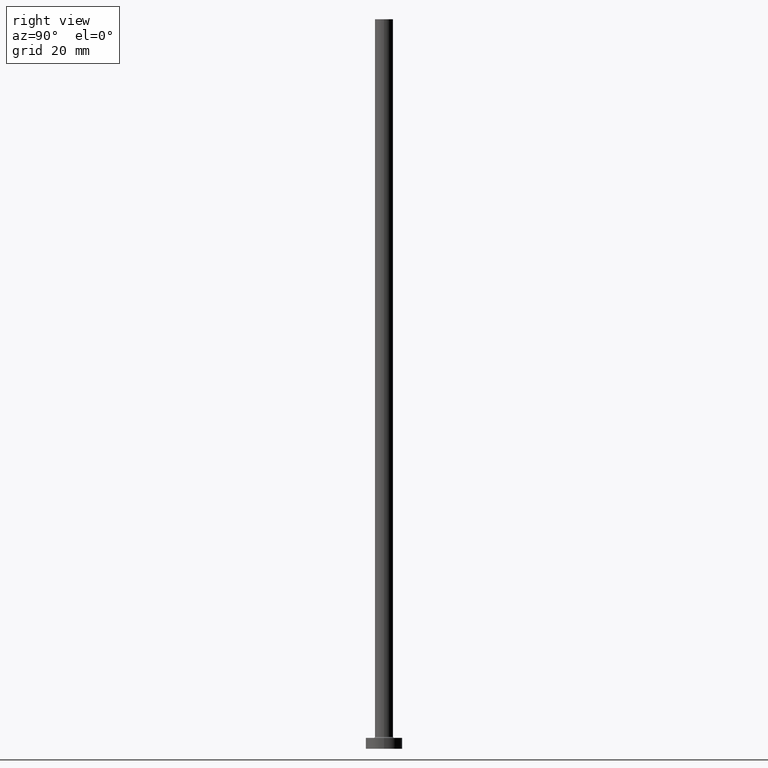
[diagram: clean part render]
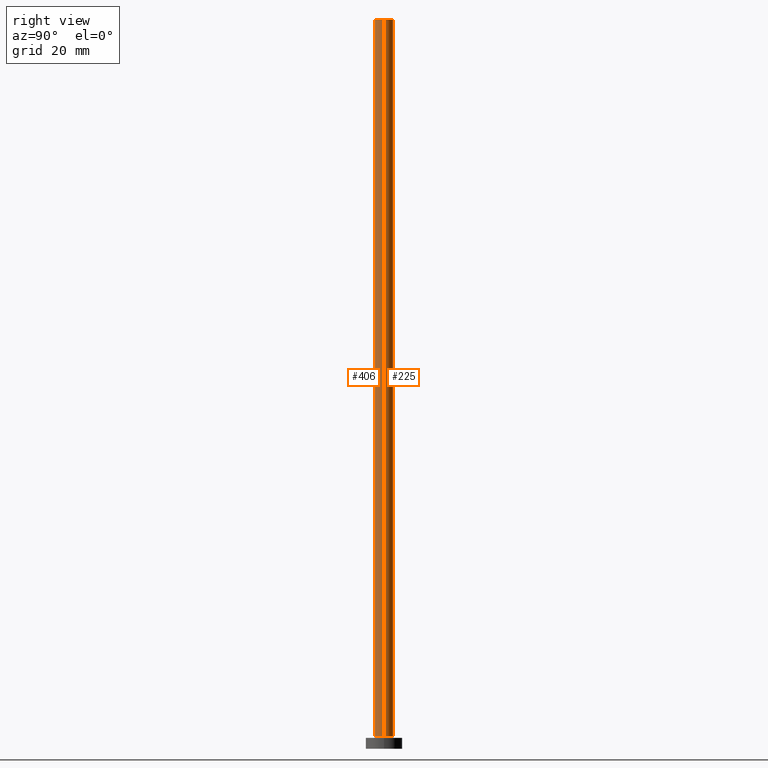
[diagram: same view with one multi-face feature highlighted, each face labeled with its STEP entity id]
A machine part, right view. The highlighted faces form ONE feature: a constant-radius fillet chain: 2 tangent blend faces with common blend radius 2.5 mm. The faces share edges in the B-rep.
Their STEP definitions:
[1] entity #225 (Cylinder):
#3 = AXIS2_PLACEMENT_3D ( 'NONE', #390, #38, #357 ) ;
#6 = ORIENTED_EDGE ( 'NONE', *, *, #55, .F. ) ;
#12 = DIRECTION ( 'NONE',  ( 1.000000000000000000, 0.000000000000000000, 0.000000000000000000 ) ) ;
#18 = CARTESIAN_POINT ( 'NONE',  ( -2.500000000000000000, 0.000000000000000000, 3.299999999999997158 ) ) ;
#21 = LINE ( 'NONE', #453, #189 ) ;
#32 = CARTESIAN_POINT ( 'NONE',  ( 2.500000000000000000, 3.061616997868383141E-16, 3.299999999999997158 ) ) ;
#38 = DIRECTION ( 'NONE',  ( -0.000000000000000000, -0.000000000000000000, -1.000000000000000000 ) ) ;
#39 = EDGE_CURVE ( 'NONE', #46, #414, #21, .T. ) ;
#46 = VERTEX_POINT ( 'NONE', #129 ) ;
#55 = EDGE_CURVE ( 'NONE', #298, #160, #245, .T. ) ;
#62 = EDGE_CURVE ( 'NONE', #46, #298, #430, .T. ) ;
#66 = DIRECTION ( 'NONE',  ( 0.000000000000000000, 0.000000000000000000, 1.000000000000000000 ) ) ;
#93 = CYLINDRICAL_SURFACE ( 'NONE', #3, 2.500000000000000000 ) ;
#129 = CARTESIAN_POINT ( 'NONE',  ( 2.500000000000000000, 3.061616997868383141E-16, 200.0000000000000000 ) ) ;
#148 = CIRCLE ( 'NONE', #386, 2.500000000000000000 ) ;
#150 = EDGE_LOOP ( 'NONE', ( #287, #186, #399, #6 ) ) ;
#160 = VERTEX_POINT ( 'NONE', #18 ) ;
#166 = AXIS2_PLACEMENT_3D ( 'NONE', #373, #334, #12 ) ;
#171 = DIRECTION ( 'NONE',  ( -0.000000000000000000, -0.000000000000000000, -1.000000000000000000 ) ) ;
#184 = CARTESIAN_POINT ( 'NONE',  ( -2.500000000000000000, 0.000000000000000000, 200.0000000000000000 ) ) ;
#186 = ORIENTED_EDGE ( 'NONE', *, *, #39, .T. ) ;
#189 = VECTOR ( 'NONE', #171, 1000.000000000000000 ) ;
#225 = ADVANCED_FACE ( 'NONE', ( #353 ), #93, .T. ) ;
#245 = LINE ( 'NONE', #397, #290 ) ;
#287 = ORIENTED_EDGE ( 'NONE', *, *, #62, .F. ) ;
#290 = VECTOR ( 'NONE', #364, 1000.000000000000000 ) ;
#298 = VERTEX_POINT ( 'NONE', #184 ) ;
#321 = CARTESIAN_POINT ( 'NONE',  ( 0.000000000000000000, 0.000000000000000000, 3.299999999999997158 ) ) ;
#334 = DIRECTION ( 'NONE',  ( 0.000000000000000000, 0.000000000000000000, 1.000000000000000000 ) ) ;
#353 = FACE_OUTER_BOUND ( 'NONE', #150, .T. ) ;
#357 = DIRECTION ( 'NONE',  ( -1.000000000000000000, 0.000000000000000000, 0.000000000000000000 ) ) ;
#364 = DIRECTION ( 'NONE',  ( -0.000000000000000000, -0.000000000000000000, -1.000000000000000000 ) ) ;
#373 = CARTESIAN_POINT ( 'NONE',  ( 0.000000000000000000, 0.000000000000000000, 200.0000000000000000 ) ) ;
#386 = AXIS2_PLACEMENT_3D ( 'NONE', #321, #66, #458 ) ;
#390 = CARTESIAN_POINT ( 'NONE',  ( 0.000000000000000000, 0.000000000000000000, 200.0000000000000000 ) ) ;
#397 = CARTESIAN_POINT ( 'NONE',  ( -2.500000000000000000, 0.000000000000000000, 200.0000000000000000 ) ) ;
#399 = ORIENTED_EDGE ( 'NONE', *, *, #459, .T. ) ;
#414 = VERTEX_POINT ( 'NONE', #32 ) ;
#430 = CIRCLE ( 'NONE', #166, 2.500000000000000000 ) ;
#453 = CARTESIAN_POINT ( 'NONE',  ( 2.500000000000000000, 3.061616997868383141E-16, 200.0000000000000000 ) ) ;
#458 = DIRECTION ( 'NONE',  ( 1.000000000000000000, 0.000000000000000000, 0.000000000000000000 ) ) ;
#459 = EDGE_CURVE ( 'NONE', #414, #160, #148, .T. ) ;
[2] entity #406 (Cylinder):
#5 = ORIENTED_EDGE ( 'NONE', *, *, #136, .F. ) ;
#18 = CARTESIAN_POINT ( 'NONE',  ( -2.500000000000000000, 0.000000000000000000, 3.299999999999997158 ) ) ;
#21 = LINE ( 'NONE', #453, #189 ) ;
#22 = AXIS2_PLACEMENT_3D ( 'NONE', #89, #24, #54 ) ;
#24 = DIRECTION ( 'NONE',  ( 0.000000000000000000, 0.000000000000000000, 1.000000000000000000 ) ) ;
#31 = FACE_OUTER_BOUND ( 'NONE', #157, .T. ) ;
#32 = CARTESIAN_POINT ( 'NONE',  ( 2.500000000000000000, 3.061616997868383141E-16, 3.299999999999997158 ) ) ;
#39 = EDGE_CURVE ( 'NONE', #46, #414, #21, .T. ) ;
#46 = VERTEX_POINT ( 'NONE', #129 ) ;
#54 = DIRECTION ( 'NONE',  ( 1.000000000000000000, 0.000000000000000000, 0.000000000000000000 ) ) ;
#55 = EDGE_CURVE ( 'NONE', #298, #160, #245, .T. ) ;
#61 = DIRECTION ( 'NONE',  ( -0.000000000000000000, -0.000000000000000000, -1.000000000000000000 ) ) ;
#89 = CARTESIAN_POINT ( 'NONE',  ( 0.000000000000000000, 0.000000000000000000, 200.0000000000000000 ) ) ;
#129 = CARTESIAN_POINT ( 'NONE',  ( 2.500000000000000000, 3.061616997868383141E-16, 200.0000000000000000 ) ) ;
#136 = EDGE_CURVE ( 'NONE', #298, #46, #175, .T. ) ;
#142 = AXIS2_PLACEMENT_3D ( 'NONE', #392, #61, #211 ) ;
#157 = EDGE_LOOP ( 'NONE', ( #366, #5, #305, #446 ) ) ;
#160 = VERTEX_POINT ( 'NONE', #18 ) ;
#171 = DIRECTION ( 'NONE',  ( -0.000000000000000000, -0.000000000000000000, -1.000000000000000000 ) ) ;
#175 = CIRCLE ( 'NONE', #22, 2.500000000000000000 ) ;
#184 = CARTESIAN_POINT ( 'NONE',  ( -2.500000000000000000, 0.000000000000000000, 200.0000000000000000 ) ) ;
#189 = VECTOR ( 'NONE', #171, 1000.000000000000000 ) ;
#211 = DIRECTION ( 'NONE',  ( -1.000000000000000000, 0.000000000000000000, 0.000000000000000000 ) ) ;
#235 = DIRECTION ( 'NONE',  ( 1.000000000000000000, 0.000000000000000000, 0.000000000000000000 ) ) ;
#245 = LINE ( 'NONE', #397, #290 ) ;
#279 = CIRCLE ( 'NONE', #441, 2.500000000000000000 ) ;
#290 = VECTOR ( 'NONE', #364, 1000.000000000000000 ) ;
#298 = VERTEX_POINT ( 'NONE', #184 ) ;
#305 = ORIENTED_EDGE ( 'NONE', *, *, #55, .T. ) ;
#311 = CARTESIAN_POINT ( 'NONE',  ( 0.000000000000000000, 0.000000000000000000, 3.299999999999997158 ) ) ;
#317 = EDGE_CURVE ( 'NONE', #160, #414, #279, .T. ) ;
#364 = DIRECTION ( 'NONE',  ( -0.000000000000000000, -0.000000000000000000, -1.000000000000000000 ) ) ;
#366 = ORIENTED_EDGE ( 'NONE', *, *, #39, .F. ) ;
#392 = CARTESIAN_POINT ( 'NONE',  ( 0.000000000000000000, 0.000000000000000000, 200.0000000000000000 ) ) ;
#397 = CARTESIAN_POINT ( 'NONE',  ( -2.500000000000000000, 0.000000000000000000, 200.0000000000000000 ) ) ;
#406 = ADVANCED_FACE ( 'NONE', ( #31 ), #422, .T. ) ;
#414 = VERTEX_POINT ( 'NONE', #32 ) ;
#422 = CYLINDRICAL_SURFACE ( 'NONE', #142, 2.500000000000000000 ) ;
#441 = AXIS2_PLACEMENT_3D ( 'NONE', #311, #450, #235 ) ;
#446 = ORIENTED_EDGE ( 'NONE', *, *, #317, .T. ) ;
#450 = DIRECTION ( 'NONE',  ( 0.000000000000000000, 0.000000000000000000, 1.000000000000000000 ) ) ;
#453 = CARTESIAN_POINT ( 'NONE',  ( 2.500000000000000000, 3.061616997868383141E-16, 200.0000000000000000 ) ) ;